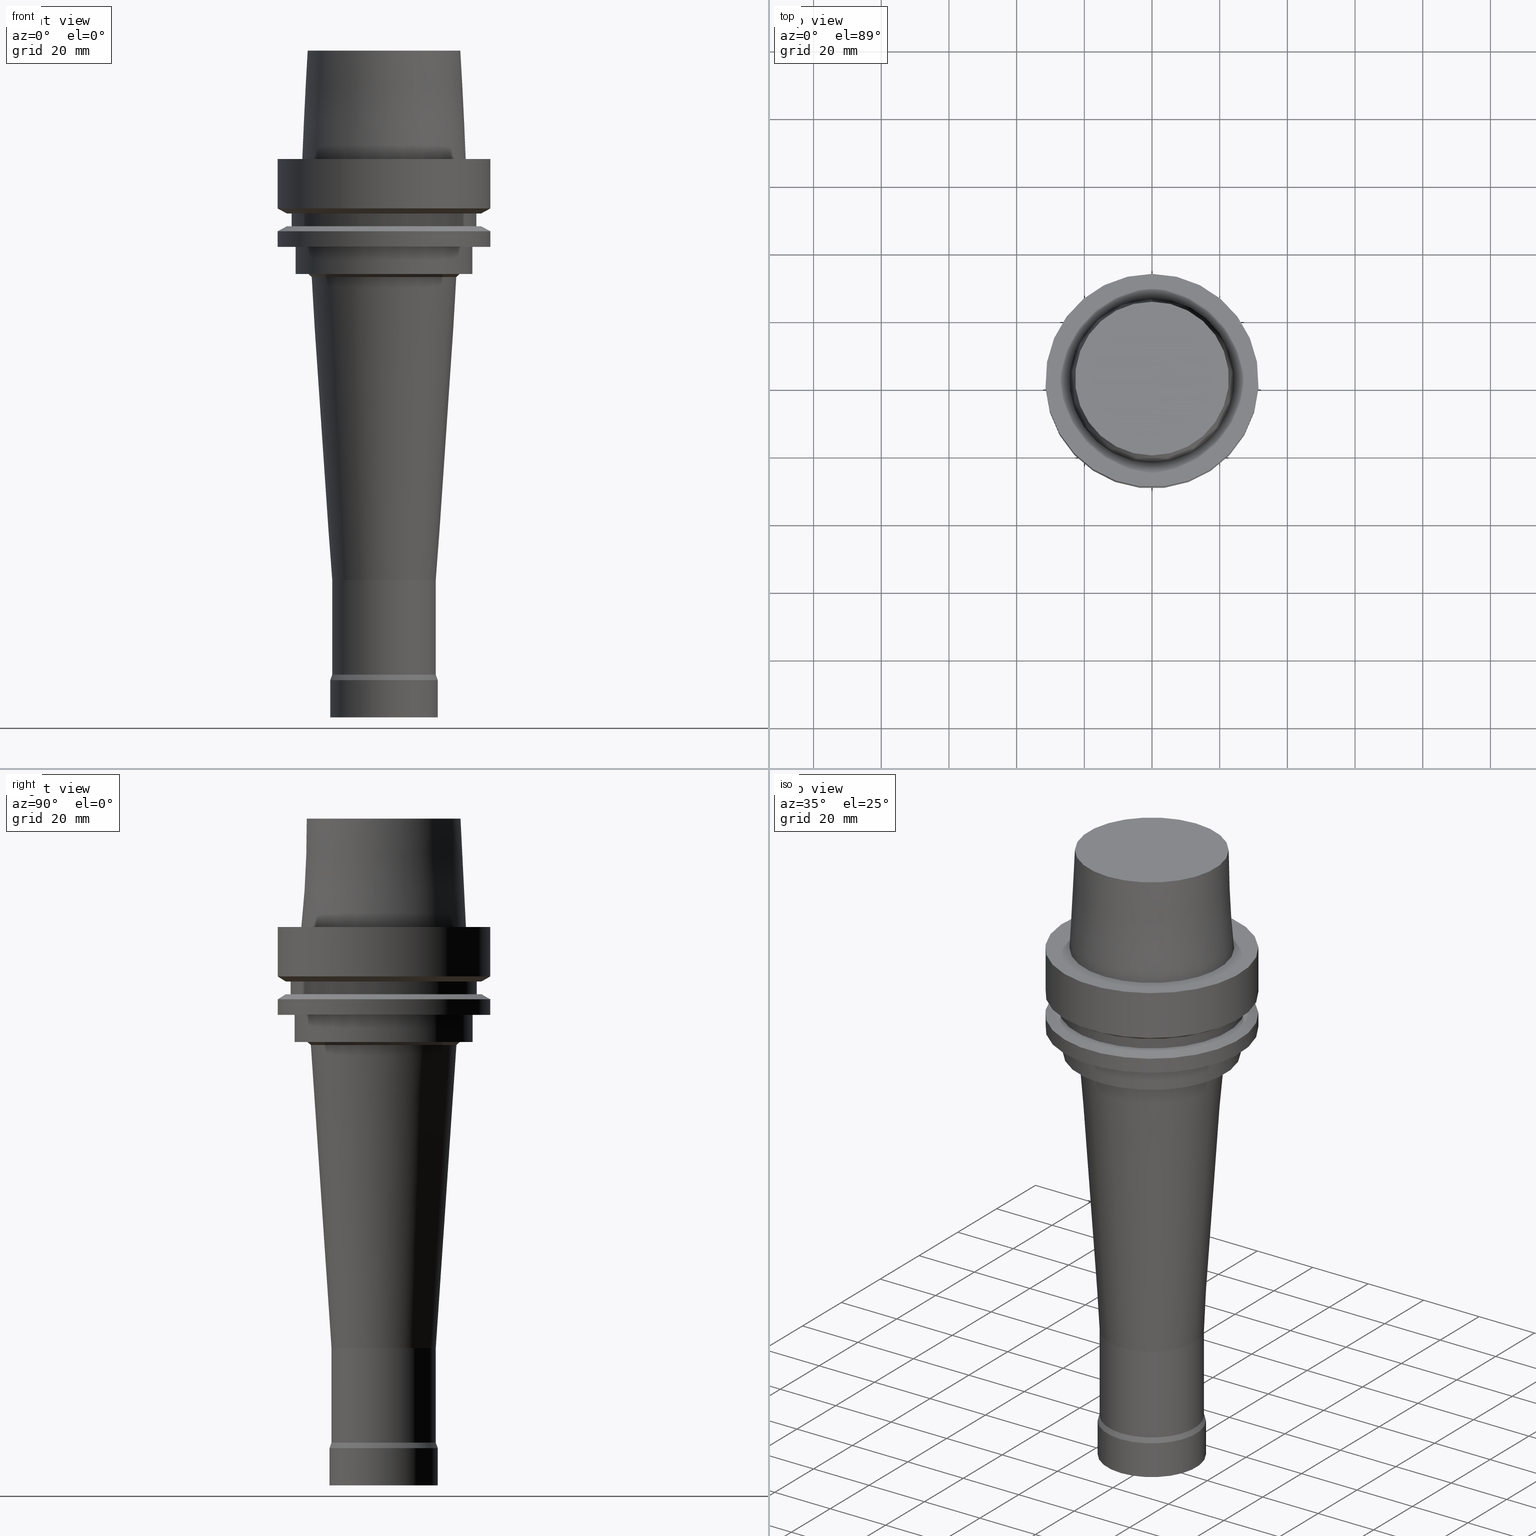
[diagram: canonical four-view strip — front | top / right | iso, engineering-drawing reading convention]
A machine part, canonical four-view strip (front | top / right | iso — engineering-drawing reading convention). The complete STEP part file that produces these views, byte-faithful:
ISO-10303-21;
HEADER;
FILE_DESCRIPTION((''),'1');
FILE_NAME('//Big_tech03/bigt/Translate/21_\X2\8F2A90ED7DDA\X0\-DXF/71_\X2\5207524A5DE55177\X0\/01_\X2\30A830F330C930DF30EB52A05DE5\X0\/01_\X2\30D530EB30AB30C330C830DF30EB\X0\ FCM/HSK/A 63/HSK-A63-FCM32113-165.stp','2012-05-30T06:28:25',(''),(''),'Spatial Interop R18','Kubotek KeyCreator V8.5.1 (14335)',' ');
FILE_SCHEMA(('CONFIG_CONTROL_DESIGN'));
ENDSEC;
DATA;
#1=DESIGN_CONTEXT('',#27,'design');
#2=APPLICATION_PROTOCOL_DEFINITION('INTERNATIONAL STANDARD','config_control_design',1994,#27);
#3=PRODUCT_CATEGORY_RELATIONSHIP('NONE','NONE',#28,#29);
#4=DATE_AND_TIME(#30,#31);
#5=DATE_TIME_ROLE('creation_date');
#6=DATE_TIME_ROLE('classification_date');
#7=PERSON_AND_ORGANIZATION_ROLE('creator');
#8=PERSON_AND_ORGANIZATION_ROLE('design_supplier');
#9=PERSON_AND_ORGANIZATION_ROLE('classification_officer');
#10=PERSON_AND_ORGANIZATION_ROLE('design_owner');
#11=APPROVAL_PERSON_ORGANIZATION(#32,#33,#34);
#12=APPROVAL_DATE_TIME(#4,#33);
#13=CC_DESIGN_APPROVAL(#33,(#35,#36,#37));
#14=CC_DESIGN_DATE_AND_TIME_ASSIGNMENT(#4,#5,(#37));
#15=CC_DESIGN_DATE_AND_TIME_ASSIGNMENT(#4,#6,(#35));
#16=CC_DESIGN_PERSON_AND_ORGANIZATION_ASSIGNMENT(#32,#10,(#38));
#17=CC_DESIGN_PERSON_AND_ORGANIZATION_ASSIGNMENT(#32,#7,(#37));
#18=CC_DESIGN_PERSON_AND_ORGANIZATION_ASSIGNMENT(#32,#7,(#36));
#19=CC_DESIGN_PERSON_AND_ORGANIZATION_ASSIGNMENT(#32,#8,(#36));
#20=CC_DESIGN_SECURITY_CLASSIFICATION(#35,(#36));
#21=CC_DESIGN_PERSON_AND_ORGANIZATION_ASSIGNMENT(#32,#9,(#35));
#22=SHAPE_DEFINITION_REPRESENTATION(#39,#40);
#23= (GEOMETRIC_REPRESENTATION_CONTEXT(3)GLOBAL_UNCERTAINTY_ASSIGNED_CONTEXT((#43))GLOBAL_UNIT_ASSIGNED_CONTEXT((#45,#46,#47))REPRESENTATION_CONTEXT('NONE','WORKSPACE'));
#27=APPLICATION_CONTEXT('CONFIGURATION CONTROLLED 3D DESIGNS OF MECHANICAL PARTS AND ASSEMBLIES');
#28=PRODUCT_CATEGORY('part','NONE');
#29=PRODUCT_RELATED_PRODUCT_CATEGORY('detail',' ',(#38));
#30=CALENDAR_DATE(2012,30,4);
#31=LOCAL_TIME(15,28,25.0,#49);
#32=PERSON_AND_ORGANIZATION(#50,#51);
#33=APPROVAL(#52,'SOLID MODEL');
#34=APPROVAL_ROLE('APPROVED');
#35=SECURITY_CLASSIFICATION('','',#53);
#36=PRODUCT_DEFINITION_FORMATION_WITH_SPECIFIED_SOURCE(' ','NONE',#38,.NOT_KNOWN.);
#37=PRODUCT_DEFINITION('NONE','NONE',#36,#1);
#38=PRODUCT('1','1','PART-1-DESC',(#54));
#39=PRODUCT_DEFINITION_SHAPE('NONE','NONE',#37);
#40=ADVANCED_BREP_SHAPE_REPRESENTATION('1',(#55,#56),#23);
#43=UNCERTAINTY_MEASURE_WITH_UNIT(LENGTH_MEASURE(1.0E-006),#45,'','');
#45= (CONVERSION_BASED_UNIT('MILLIMETRE',#59)LENGTH_UNIT()NAMED_UNIT(#62));
#46= (NAMED_UNIT(#64)PLANE_ANGLE_UNIT()SI_UNIT($,.RADIAN.));
#47= (NAMED_UNIT(#64)SOLID_ANGLE_UNIT()SI_UNIT($,.STERADIAN.));
#49=COORDINATED_UNIVERSAL_TIME_OFFSET(9,0,.AHEAD.);
#50=PERSON('','UNSPECIFIED',$,$,$,$);
#51=ORGANIZATION('UNSPECIFIED','UNSPECIFIED','UNSPECIFIED');
#52=APPROVAL_STATUS('approved');
#53=SECURITY_CLASSIFICATION_LEVEL('unclassified');
#54=MECHANICAL_CONTEXT('',#27,'mechanical');
#55=MANIFOLD_SOLID_BREP('1',#70);
#56=AXIS2_PLACEMENT_3D('',#71,#72,#73);
#59=LENGTH_MEASURE_WITH_UNIT(LENGTH_MEASURE(1.0),#74);
#62=DIMENSIONAL_EXPONENTS(1.0,0.0,0.0,0.0,0.0,0.0,0.0);
#64=DIMENSIONAL_EXPONENTS(0.0,0.0,0.0,0.0,0.0,0.0,0.0);
#70=CLOSED_SHELL('',(#75,#76,#77,#78,#79,#80,#81,#82,#83,#84,#85,#86,#87,#88,#89,#90,#91,#92,#93));
#71=CARTESIAN_POINT('',(0.0,0.0,0.0));
#72=DIRECTION('',(0.0,0.0,1.0));
#73=DIRECTION('',(1.0,0.0,0.0));
#74= (NAMED_UNIT(#62)LENGTH_UNIT()SI_UNIT(.MILLI.,.METRE.));
#75=ADVANCED_FACE('',(#95,#96),#97,.T.);
#76=ADVANCED_FACE('',(#98,#99),#100,.T.);
#77=ADVANCED_FACE('',(#101,#102),#103,.T.);
#78=ADVANCED_FACE('',(#104),#105,.T.);
#79=ADVANCED_FACE('',(#106,#107),#108,.T.);
#80=ADVANCED_FACE('',(#109),#110,.T.);
#81=ADVANCED_FACE('',(#111,#112),#113,.T.);
#82=ADVANCED_FACE('',(#114,#115),#116,.T.);
#83=ADVANCED_FACE('',(#117,#118),#119,.T.);
#84=ADVANCED_FACE('',(#120,#121),#122,.T.);
#85=ADVANCED_FACE('',(#123,#124),#125,.T.);
#86=ADVANCED_FACE('',(#126,#127),#128,.T.);
#87=ADVANCED_FACE('',(#129,#130),#131,.T.);
#88=ADVANCED_FACE('',(#132,#133),#134,.T.);
#89=ADVANCED_FACE('',(#135,#136),#137,.T.);
#90=ADVANCED_FACE('',(#138,#139),#140,.T.);
#91=ADVANCED_FACE('',(#141,#142),#143,.T.);
#92=ADVANCED_FACE('',(#144,#145),#146,.T.);
#93=ADVANCED_FACE('',(#147,#148),#149,.T.);
#95=FACE_BOUND('',#150,.T.);
#96=FACE_BOUND('',#151,.T.);
#97=CYLINDRICAL_SURFACE('',#152,15.4);
#98=FACE_BOUND('',#153,.T.);
#99=FACE_BOUND('',#154,.T.);
#100=CONICAL_SURFACE('',#155,15.7,0.349471097158753);
#101=FACE_BOUND('',#156,.T.);
#102=FACE_BOUND('',#157,.T.);
#103=CYLINDRICAL_SURFACE('',#158,16.0);
#104=FACE_OUTER_BOUND('',#159,.T.);
#105=PLANE('',#160);
#106=FACE_BOUND('',#161,.T.);
#107=FACE_BOUND('',#162,.T.);
#108=CONICAL_SURFACE('',#163,18.4538508653126,0.0680777378918343);
#109=FACE_OUTER_BOUND('',#164,.T.);
#110=PLANE('',#165);
#111=FACE_BOUND('',#166,.T.);
#112=FACE_BOUND('',#167,.T.);
#113=CONICAL_SURFACE('',#168,23.5149999985447,0.0499583958256321);
#114=FACE_BOUND('',#169,.T.);
#115=FACE_BOUND('',#170,.T.);
#116=CYLINDRICAL_SURFACE('',#171,31.5);
#117=FACE_BOUND('',#172,.T.);
#118=FACE_BOUND('',#173,.T.);
#119=CONICAL_SURFACE('',#174,30.19879763,1.04719755326565);
#120=FACE_BOUND('',#175,.T.);
#121=FACE_OUTER_BOUND('',#176,.T.);
#122=PLANE('',#177);
#123=FACE_BOUND('',#178,.T.);
#124=FACE_BOUND('',#179,.T.);
#125=CYLINDRICAL_SURFACE('',#180,27.5);
#126=FACE_OUTER_BOUND('',#181,.T.);
#127=FACE_BOUND('',#182,.T.);
#128=PLANE('',#183);
#129=FACE_BOUND('',#184,.T.);
#130=FACE_BOUND('',#185,.T.);
#131=CONICAL_SURFACE('',#186,30.19879763,1.04719755326565);
#132=FACE_BOUND('',#187,.T.);
#133=FACE_BOUND('',#188,.T.);
#134=CYLINDRICAL_SURFACE('',#189,31.5);
#135=FACE_BOUND('',#190,.T.);
#136=FACE_OUTER_BOUND('',#191,.T.);
#137=PLANE('',#192);
#138=FACE_BOUND('',#193,.T.);
#139=FACE_BOUND('',#194,.T.);
#140=CYLINDRICAL_SURFACE('',#195,26.3);
#141=FACE_BOUND('',#196,.T.);
#142=FACE_OUTER_BOUND('',#197,.T.);
#143=PLANE('',#198);
#144=FACE_BOUND('',#199,.T.);
#145=FACE_BOUND('',#200,.T.);
#146=CONICAL_SURFACE('',#201,22.0038508653126,0.847493381659098);
#147=FACE_BOUND('',#202,.T.);
#148=FACE_OUTER_BOUND('',#203,.T.);
#149=PLANE('',#204);
#150=EDGE_LOOP('',(#205));
#151=EDGE_LOOP('',(#206));
#152=AXIS2_PLACEMENT_3D('',#207,#208,#209);
#153=EDGE_LOOP('',(#210));
#154=EDGE_LOOP('',(#211));
#155=AXIS2_PLACEMENT_3D('',#212,#213,#214);
#156=EDGE_LOOP('',(#215));
#157=EDGE_LOOP('',(#216));
#158=AXIS2_PLACEMENT_3D('',#217,#218,#219);
#159=EDGE_LOOP('',(#220));
#160=AXIS2_PLACEMENT_3D('',#221,#222,#223);
#161=EDGE_LOOP('',(#224));
#162=EDGE_LOOP('',(#225));
#163=AXIS2_PLACEMENT_3D('',#226,#227,#228);
#164=EDGE_LOOP('',(#229));
#165=AXIS2_PLACEMENT_3D('',#230,#231,#232);
#166=EDGE_LOOP('',(#233));
#167=EDGE_LOOP('',(#234));
#168=AXIS2_PLACEMENT_3D('',#235,#236,#237);
#169=EDGE_LOOP('',(#238));
#170=EDGE_LOOP('',(#239));
#171=AXIS2_PLACEMENT_3D('',#240,#241,#242);
#172=EDGE_LOOP('',(#243));
#173=EDGE_LOOP('',(#244));
#174=AXIS2_PLACEMENT_3D('',#245,#246,#247);
#175=EDGE_LOOP('',(#248));
#176=EDGE_LOOP('',(#249));
#177=AXIS2_PLACEMENT_3D('',#250,#251,#252);
#178=EDGE_LOOP('',(#253));
#179=EDGE_LOOP('',(#254));
#180=AXIS2_PLACEMENT_3D('',#255,#256,#257);
#181=EDGE_LOOP('',(#258));
#182=EDGE_LOOP('',(#259));
#183=AXIS2_PLACEMENT_3D('',#260,#261,#262);
#184=EDGE_LOOP('',(#263));
#185=EDGE_LOOP('',(#264));
#186=AXIS2_PLACEMENT_3D('',#265,#266,#267);
#187=EDGE_LOOP('',(#268));
#188=EDGE_LOOP('',(#269));
#189=AXIS2_PLACEMENT_3D('',#270,#271,#272);
#190=EDGE_LOOP('',(#273));
#191=EDGE_LOOP('',(#274));
#192=AXIS2_PLACEMENT_3D('',#275,#276,#277);
#193=EDGE_LOOP('',(#278));
#194=EDGE_LOOP('',(#279));
#195=AXIS2_PLACEMENT_3D('',#280,#281,#282);
#196=EDGE_LOOP('',(#283));
#197=EDGE_LOOP('',(#284));
#198=AXIS2_PLACEMENT_3D('',#285,#286,#287);
#199=EDGE_LOOP('',(#288));
#200=EDGE_LOOP('',(#289));
#201=AXIS2_PLACEMENT_3D('',#290,#291,#292);
#202=EDGE_LOOP('',(#293));
#203=EDGE_LOOP('',(#294));
#204=AXIS2_PLACEMENT_3D('',#295,#296,#297);
#205=ORIENTED_EDGE('',*,*,#298,.F.);
#206=ORIENTED_EDGE('',*,*,#299,.T.);
#207=CARTESIAN_POINT('',(8.47479020897021E-015,1.69495804179404E-014,-138.403827370809));
#208=DIRECTION('',(-6.12323399573677E-017,-1.22464679914735E-016,1.0));
#209=DIRECTION('',(-1.23259516440783E-032,1.0,1.22464679914735E-016));
#210=ORIENTED_EDGE('',*,*,#300,.F.);
#211=ORIENTED_EDGE('',*,*,#298,.T.);
#212=CARTESIAN_POINT('',(9.37937357950911E-015,1.87587471590182E-014,-153.17679491));
#213=DIRECTION('',(6.12323399573676E-017,1.22464679914735E-016,-1.0));
#214=DIRECTION('',(-1.23259516440783E-032,1.0,1.22464679914735E-016));
#215=ORIENTED_EDGE('',*,*,#301,.F.);
#216=ORIENTED_EDGE('',*,*,#300,.T.);
#217=CARTESIAN_POINT('',(9.76655822320014E-015,1.95331164464003E-014,-159.5));
#218=DIRECTION('',(-6.12323399573677E-017,-1.22464679914735E-016,1.0));
#219=DIRECTION('',(-1.23259516440783E-032,1.0,1.22464679914735E-016));
#220=ORIENTED_EDGE('',*,*,#301,.T.);
#221=CARTESIAN_POINT('',(1.01033360929657E-014,8.00000000000002,-165.0));
#222=DIRECTION('',(6.12323399573677E-017,1.22464679914735E-016,-1.0));
#223=DIRECTION('',(-1.23259516440783E-032,1.0,1.22464679914735E-016));
#224=ORIENTED_EDGE('',*,*,#299,.F.);
#225=ORIENTED_EDGE('',*,*,#302,.T.);
#226=CARTESIAN_POINT('',(4.87808028606746E-015,9.75616057213492E-015,-79.6650967358714));
#227=DIRECTION('',(-6.12323399573677E-017,-1.22464679914735E-016,1.0));
#228=DIRECTION('',(-1.23259516440783E-032,1.0,1.22464679914735E-016));
#229=ORIENTED_EDGE('',*,*,#303,.F.);
#230=CARTESIAN_POINT('',(-1.95943487863577E-015,11.3574999984407,32.0));
#231=DIRECTION('',(-6.12323399573677E-017,-1.22464679914735E-016,1.0));
#232=DIRECTION('',(1.23259516440783E-032,-1.0,-1.22464679914735E-016));
#233=ORIENTED_EDGE('',*,*,#304,.F.);
#234=ORIENTED_EDGE('',*,*,#303,.T.);
#235=CARTESIAN_POINT('',(-9.79717439317883E-016,-1.95943487863576E-015,16.0));
#236=DIRECTION('',(6.12323399573676E-017,1.22464679914735E-016,-1.0));
#237=DIRECTION('',(-1.23259516440783E-032,1.0,1.22464679914735E-016));
#238=ORIENTED_EDGE('',*,*,#305,.F.);
#239=ORIENTED_EDGE('',*,*,#306,.T.);
#240=CARTESIAN_POINT('',(4.47684973986342E-016,8.95369947972684E-016,-7.311250465));
#241=DIRECTION('',(-6.12323399573677E-017,-1.22464679914735E-016,1.0));
#242=DIRECTION('',(-1.23259516440783E-032,1.0,1.22464679914735E-016));
#243=ORIENTED_EDGE('',*,*,#307,.F.);
#244=ORIENTED_EDGE('',*,*,#305,.T.);
#245=CARTESIAN_POINT('',(9.41370714892619E-016,1.88274142978524E-015,-15.373750465));
#246=DIRECTION('',(-6.12323399573677E-017,-1.22464679914735E-016,1.0));
#247=DIRECTION('',(-1.23259516440783E-032,1.0,1.22464679914735E-016));
#248=ORIENTED_EDGE('',*,*,#308,.F.);
#249=ORIENTED_EDGE('',*,*,#307,.T.);
#250=CARTESIAN_POINT('',(9.87371481812553E-016,28.19879763,-16.125));
#251=DIRECTION('',(6.12323399573677E-017,1.22464679914735E-016,-1.0));
#252=DIRECTION('',(-1.23259516440783E-032,1.0,1.22464679914735E-016));
#253=ORIENTED_EDGE('',*,*,#309,.F.);
#254=ORIENTED_EDGE('',*,*,#308,.T.);
#255=CARTESIAN_POINT('',(1.10218211923262E-015,2.20436423846524E-015,-18.0));
#256=DIRECTION('',(-6.12323399573677E-017,-1.22464679914735E-016,1.0));
#257=DIRECTION('',(-1.23259516440783E-032,1.0,1.22464679914735E-016));
#258=ORIENTED_EDGE('',*,*,#310,.F.);
#259=ORIENTED_EDGE('',*,*,#309,.T.);
#260=CARTESIAN_POINT('',(1.21699275665268E-015,28.19879763,-19.875));
#261=DIRECTION('',(-6.12323399573677E-017,-1.22464679914735E-016,1.0));
#262=DIRECTION('',(1.23259516440783E-032,-1.0,-1.22464679914735E-016));
#263=ORIENTED_EDGE('',*,*,#311,.F.);
#264=ORIENTED_EDGE('',*,*,#310,.T.);
#265=CARTESIAN_POINT('',(1.26299352357262E-015,2.52598704714523E-015,-20.626249535));
#266=DIRECTION('',(6.12323399573677E-017,1.22464679914735E-016,-1.0));
#267=DIRECTION('',(-1.23259516440783E-032,1.0,1.22464679914735E-016));
#268=ORIENTED_EDGE('',*,*,#312,.F.);
#269=ORIENTED_EDGE('',*,*,#311,.T.);
#270=CARTESIAN_POINT('',(1.45051756469206E-015,2.90103512938411E-015,-23.688749535));
#271=DIRECTION('',(-6.12323399573677E-017,-1.22464679914735E-016,1.0));
#272=DIRECTION('',(-1.23259516440783E-032,1.0,1.22464679914735E-016));
#273=ORIENTED_EDGE('',*,*,#313,.F.);
#274=ORIENTED_EDGE('',*,*,#312,.T.);
#275=CARTESIAN_POINT('',(1.59204083889156E-015,28.9,-26.0));
#276=DIRECTION('',(6.12323399573677E-017,1.22464679914735E-016,-1.0));
#277=DIRECTION('',(-1.23259516440783E-032,1.0,1.22464679914735E-016));
#278=ORIENTED_EDGE('',*,*,#314,.F.);
#279=ORIENTED_EDGE('',*,*,#313,.T.);
#280=CARTESIAN_POINT('',(1.83697019872103E-015,3.67394039744206E-015,-30.0));
#281=DIRECTION('',(-6.12323399573677E-017,-1.22464679914735E-016,1.0));
#282=DIRECTION('',(-1.23259516440783E-032,1.0,1.22464679914735E-016));
#283=ORIENTED_EDGE('',*,*,#315,.F.);
#284=ORIENTED_EDGE('',*,*,#314,.T.);
#285=CARTESIAN_POINT('',(2.0818995585505E-015,24.4,-34.0));
#286=DIRECTION('',(6.12323399573677E-017,1.22464679914735E-016,-1.0));
#287=DIRECTION('',(-1.23259516440783E-032,1.0,1.22464679914735E-016));
#288=ORIENTED_EDGE('',*,*,#302,.F.);
#289=ORIENTED_EDGE('',*,*,#315,.T.);
#290=CARTESIAN_POINT('',(2.1087232591643E-015,4.21744651832859E-015,-34.4380642750623));
#291=DIRECTION('',(-6.12323399573677E-017,-1.22464679914735E-016,1.0));
#292=DIRECTION('',(-1.23259516440783E-032,1.0,1.22464679914735E-016));
#293=ORIENTED_EDGE('',*,*,#304,.T.);
#294=ORIENTED_EDGE('',*,*,#306,.F.);
#295=CARTESIAN_POINT('',(-3.40924878510528E-031,27.907500000104,3.36768305473321E-015));
#296=DIRECTION('',(-6.12323399573677E-017,-1.08546795432774E-016,1.0));
#297=DIRECTION('',(1.14737270099915E-032,-1.0,-1.08546795432774E-016));
#298=EDGE_CURVE('',#316,#316,#317,.T.);
#299=EDGE_CURVE('',#318,#318,#319,.T.);
#300=EDGE_CURVE('',#320,#320,#321,.T.);
#301=EDGE_CURVE('',#322,#322,#323,.T.);
#302=EDGE_CURVE('',#324,#324,#325,.T.);
#303=EDGE_CURVE('',#326,#326,#327,.T.);
#304=EDGE_CURVE('',#328,#328,#329,.T.);
#305=EDGE_CURVE('',#330,#330,#331,.T.);
#306=EDGE_CURVE('',#332,#332,#333,.T.);
#307=EDGE_CURVE('',#334,#334,#335,.T.);
#308=EDGE_CURVE('',#336,#336,#337,.T.);
#309=EDGE_CURVE('',#338,#338,#339,.T.);
#310=EDGE_CURVE('',#340,#340,#341,.T.);
#311=EDGE_CURVE('',#342,#342,#343,.T.);
#312=EDGE_CURVE('',#344,#344,#345,.T.);
#313=EDGE_CURVE('',#346,#346,#347,.T.);
#314=EDGE_CURVE('',#348,#348,#349,.T.);
#315=EDGE_CURVE('',#350,#350,#351,.T.);
#316=VERTEX_POINT('',#352);
#317=CIRCLE('',#353,15.4);
#318=VERTEX_POINT('',#354);
#319=CIRCLE('',#355,15.4);
#320=VERTEX_POINT('',#356);
#321=CIRCLE('',#357,16.0);
#322=VERTEX_POINT('',#358);
#323=CIRCLE('',#359,16.0);
#324=VERTEX_POINT('',#360);
#325=CIRCLE('',#361,21.5077017306253);
#326=VERTEX_POINT('',#362);
#327=CIRCLE('',#363,22.7149999968815);
#328=VERTEX_POINT('',#364);
#329=CIRCLE('',#365,24.3150000002079);
#330=VERTEX_POINT('',#366);
#331=CIRCLE('',#367,31.5);
#332=VERTEX_POINT('',#368);
#333=CIRCLE('',#369,31.5);
#334=VERTEX_POINT('',#370);
#335=CIRCLE('',#371,28.89759526);
#336=VERTEX_POINT('',#372);
#337=CIRCLE('',#373,27.5);
#338=VERTEX_POINT('',#374);
#339=CIRCLE('',#375,27.5);
#340=VERTEX_POINT('',#376);
#341=CIRCLE('',#377,28.89759526);
#342=VERTEX_POINT('',#378);
#343=CIRCLE('',#379,31.5);
#344=VERTEX_POINT('',#380);
#345=CIRCLE('',#381,31.5);
#346=VERTEX_POINT('',#382);
#347=CIRCLE('',#383,26.3);
#348=VERTEX_POINT('',#384);
#349=CIRCLE('',#385,26.3);
#350=VERTEX_POINT('',#386);
#351=CIRCLE('',#387,22.5);
#352=CARTESIAN_POINT('',(9.32896680558359E-015,15.4,-152.35358982));
#353=AXIS2_PLACEMENT_3D('',#388,#389,#390);
#354=CARTESIAN_POINT('',(7.62061361235683E-015,15.4,-124.454064921618));
#355=AXIS2_PLACEMENT_3D('',#391,#392,#393);
#356=CARTESIAN_POINT('',(9.42978035343462E-015,16.0,-154.0));
#357=AXIS2_PLACEMENT_3D('',#394,#395,#396);
#358=CARTESIAN_POINT('',(1.01033360929657E-014,16.0,-165.0));
#359=AXIS2_PLACEMENT_3D('',#397,#398,#399);
#360=CARTESIAN_POINT('',(2.13554695977809E-015,21.5077017306253,-34.8761285501247));
#361=AXIS2_PLACEMENT_3D('',#400,#401,#402);
#362=CARTESIAN_POINT('',(-1.95943487863577E-015,22.7149999968815,32.0));
#363=AXIS2_PLACEMENT_3D('',#403,#404,#405);
#364=CARTESIAN_POINT('',(-2.99705514228327E-031,24.3150000002079,2.97772869215225E-015));
#365=AXIS2_PLACEMENT_3D('',#406,#407,#408);
#366=CARTESIAN_POINT('',(8.95369947972684E-016,31.5,-14.62250093));
#367=AXIS2_PLACEMENT_3D('',#409,#410,#411);
#368=CARTESIAN_POINT('',(-3.8214424279273E-031,31.5,3.75763741731416E-015));
#369=AXIS2_PLACEMENT_3D('',#412,#413,#414);
#370=CARTESIAN_POINT('',(9.87371481812553E-016,28.89759526,-16.125));
#371=AXIS2_PLACEMENT_3D('',#415,#416,#417);
#372=CARTESIAN_POINT('',(9.87371481812553E-016,27.5,-16.125));
#373=AXIS2_PLACEMENT_3D('',#418,#419,#420);
#374=CARTESIAN_POINT('',(1.21699275665268E-015,27.5,-19.875));
#375=AXIS2_PLACEMENT_3D('',#421,#422,#423);
#376=CARTESIAN_POINT('',(1.21699275665268E-015,28.89759526,-19.875));
#377=AXIS2_PLACEMENT_3D('',#424,#425,#426);
#378=CARTESIAN_POINT('',(1.30899429049255E-015,31.5,-21.37749907));
#379=AXIS2_PLACEMENT_3D('',#427,#428,#429);
#380=CARTESIAN_POINT('',(1.59204083889156E-015,31.5,-26.0));
#381=AXIS2_PLACEMENT_3D('',#430,#431,#432);
#382=CARTESIAN_POINT('',(1.59204083889156E-015,26.3,-26.0));
#383=AXIS2_PLACEMENT_3D('',#433,#434,#435);
#384=CARTESIAN_POINT('',(2.0818995585505E-015,26.3,-34.0));
#385=AXIS2_PLACEMENT_3D('',#436,#437,#438);
#386=CARTESIAN_POINT('',(2.0818995585505E-015,22.5,-34.0));
#387=AXIS2_PLACEMENT_3D('',#439,#440,#441);
#388=CARTESIAN_POINT('',(9.32896680558359E-015,1.86579336111672E-014,-152.35358982));
#389=DIRECTION('',(6.12323399573677E-017,1.22464679914735E-016,-1.0));
#390=DIRECTION('',(-1.23259516440783E-032,1.0,1.22464679914735E-016));
#391=CARTESIAN_POINT('',(7.62061361235683E-015,1.52412272247137E-014,-124.454064921618));
#392=DIRECTION('',(6.12323399573677E-017,1.22464679914735E-016,-1.0));
#393=DIRECTION('',(-1.23259516440783E-032,1.0,1.22464679914735E-016));
#394=CARTESIAN_POINT('',(9.42978035343462E-015,1.88595607068692E-014,-154.0));
#395=DIRECTION('',(6.12323399573677E-017,1.22464679914735E-016,-1.0));
#396=DIRECTION('',(-1.23259516440783E-032,1.0,1.22464679914735E-016));
#397=CARTESIAN_POINT('',(1.01033360929657E-014,2.02066721859313E-014,-165.0));
#398=DIRECTION('',(6.12323399573677E-017,1.22464679914735E-016,-1.0));
#399=DIRECTION('',(-1.23259516440783E-032,1.0,1.22464679914735E-016));
#400=CARTESIAN_POINT('',(2.13554695977809E-015,4.27109391955618E-015,-34.8761285501247));
#401=DIRECTION('',(6.12323399573677E-017,1.22464679914735E-016,-1.0));
#402=DIRECTION('',(-1.23259516440783E-032,1.0,1.22464679914735E-016));
#403=CARTESIAN_POINT('',(-1.95943487863577E-015,-3.91886975727153E-015,32.0));
#404=DIRECTION('',(6.12323399573677E-017,1.22464679914735E-016,-1.0));
#405=DIRECTION('',(-1.23259516440783E-032,1.0,1.22464679914735E-016));
#406=CARTESIAN_POINT('',(0.0,0.0,0.0));
#407=DIRECTION('',(6.12323399573677E-017,1.08546795432774E-016,-1.0));
#408=DIRECTION('',(-1.14737270099915E-032,1.0,1.08546795432774E-016));
#409=CARTESIAN_POINT('',(8.95369947972685E-016,1.79073989594537E-015,-14.62250093));
#410=DIRECTION('',(6.12323399573677E-017,1.22464679914735E-016,-1.0));
#411=DIRECTION('',(-1.23259516440783E-032,1.0,1.22464679914735E-016));
#412=CARTESIAN_POINT('',(6.12323399573677E-033,1.22464679914735E-032,-1.0E-016));
#413=DIRECTION('',(6.12323399573677E-017,1.22464679914735E-016,-1.0));
#414=DIRECTION('',(-1.23259516440783E-032,1.0,1.22464679914735E-016));
#415=CARTESIAN_POINT('',(9.87371481812554E-016,1.97474296362511E-015,-16.125));
#416=DIRECTION('',(6.12323399573677E-017,1.22464679914735E-016,-1.0));
#417=DIRECTION('',(-1.23259516440783E-032,1.0,1.22464679914735E-016));
#418=CARTESIAN_POINT('',(9.87371481812554E-016,1.97474296362511E-015,-16.125));
#419=DIRECTION('',(6.12323399573677E-017,1.22464679914735E-016,-1.0));
#420=DIRECTION('',(-1.23259516440783E-032,1.0,1.22464679914735E-016));
#421=CARTESIAN_POINT('',(1.21699275665268E-015,2.43398551330536E-015,-19.875));
#422=DIRECTION('',(6.12323399573677E-017,1.22464679914735E-016,-1.0));
#423=DIRECTION('',(-1.23259516440783E-032,1.0,1.22464679914735E-016));
#424=CARTESIAN_POINT('',(1.21699275665268E-015,2.43398551330536E-015,-19.875));
#425=DIRECTION('',(6.12323399573677E-017,1.22464679914735E-016,-1.0));
#426=DIRECTION('',(-1.23259516440783E-032,1.0,1.22464679914735E-016));
#427=CARTESIAN_POINT('',(1.30899429049255E-015,2.6179885809851E-015,-21.37749907));
#428=DIRECTION('',(6.12323399573677E-017,1.22464679914735E-016,-1.0));
#429=DIRECTION('',(-1.23259516440783E-032,1.0,1.22464679914735E-016));
#430=CARTESIAN_POINT('',(1.59204083889156E-015,3.18408167778312E-015,-26.0));
#431=DIRECTION('',(6.12323399573677E-017,1.22464679914735E-016,-1.0));
#432=DIRECTION('',(-1.23259516440783E-032,1.0,1.22464679914735E-016));
#433=CARTESIAN_POINT('',(1.59204083889156E-015,3.18408167778312E-015,-26.0));
#434=DIRECTION('',(6.12323399573677E-017,1.22464679914735E-016,-1.0));
#435=DIRECTION('',(-1.23259516440783E-032,1.0,1.22464679914735E-016));
#436=CARTESIAN_POINT('',(2.0818995585505E-015,4.163799117101E-015,-34.0));
#437=DIRECTION('',(6.12323399573677E-017,1.22464679914735E-016,-1.0));
#438=DIRECTION('',(-1.23259516440783E-032,1.0,1.22464679914735E-016));
#439=CARTESIAN_POINT('',(2.0818995585505E-015,4.163799117101E-015,-34.0));
#440=DIRECTION('',(6.12323399573677E-017,1.22464679914735E-016,-1.0));
#441=DIRECTION('',(-1.23259516440783E-032,1.0,1.22464679914735E-016));
ENDSEC;
END-ISO-10303-21;
